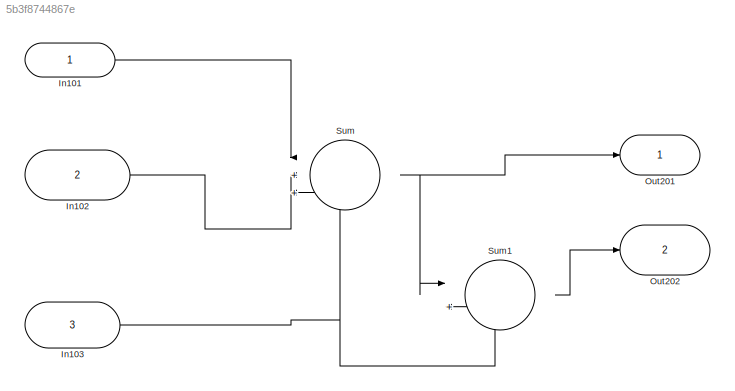
MODEL slx_5b3f8744867e
KIND model
CONFIG AbsTol = auto
CONFIG EnableMultiTasking = off
CONFIG FixedStep = auto
CONFIG MaxStep = auto
CONFIG MinStep = auto
CONFIG RelTol = 1e-3
CONFIG SampleTimeConstraint = Unconstrained
CONFIG SolverName = VariableStepAuto
CONFIG StartTime = 0.0
CONFIG StopTime = 10.0
BLOCK [Inport] In101
BLOCK [Inport] In102
  Port = 2
BLOCK [Inport] In103
  Port = 3
BLOCK [Outport] Out201
BLOCK [Outport] Out202
  Port = 2
BLOCK [Sum] Sum
  Inputs = |+++
  Ports = [3, 1]
BLOCK [Sum] Sum1
  Inputs = |+-
  Ports = [2, 1]
LINE In101:1 -> Sum:1
LINE In102:1 -> Sum:2
NET In103:1 -> Sum1:2, Sum:3
LINE Sum1:1 -> Out202:1
NET Sum:1 -> Out201:1, Sum1:1
note: NET lines group one-source signal fan-out (src -> all destinations, sorted); 1:1 wires keep LINE
